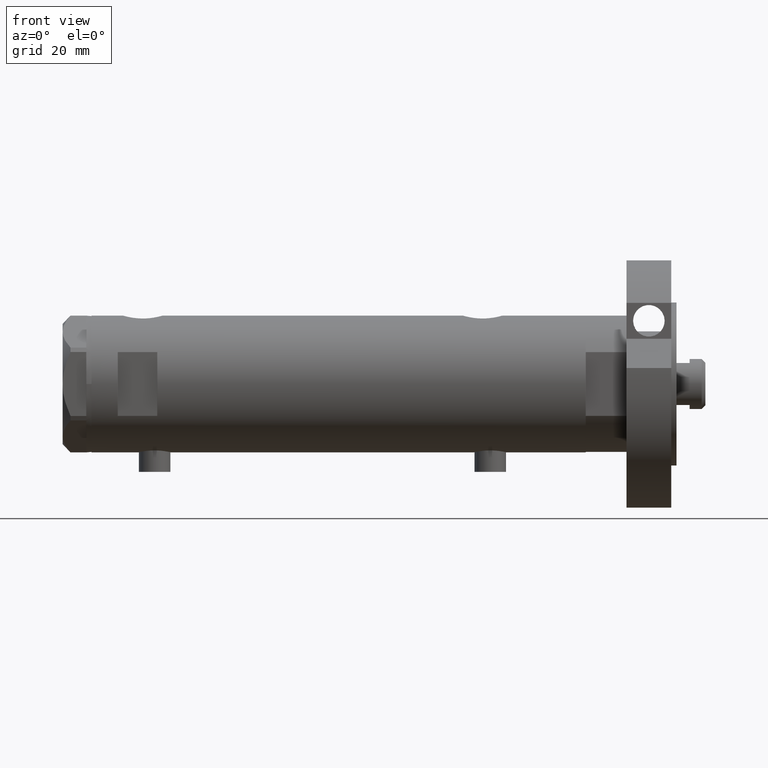
[diagram: clean part render]
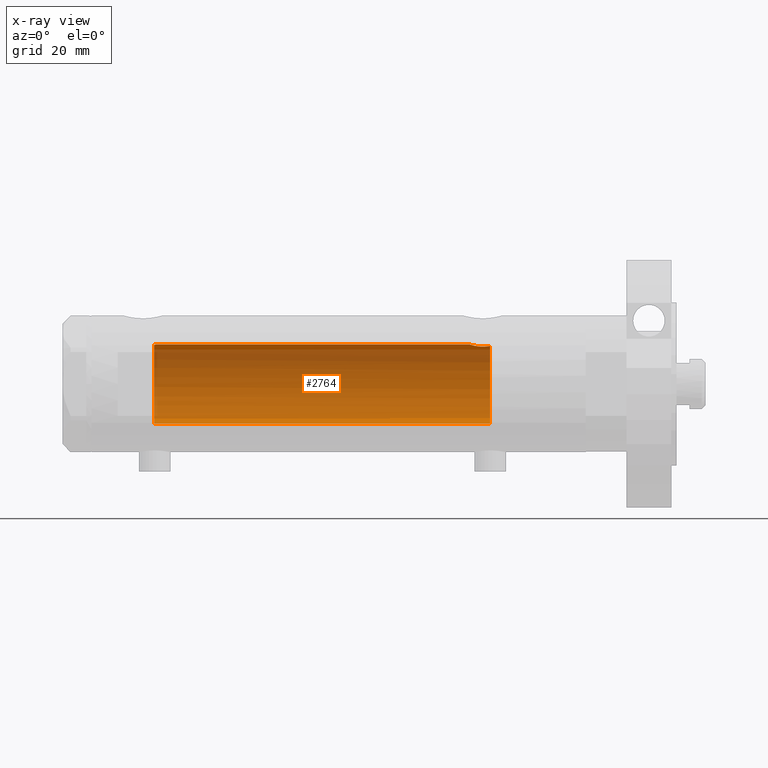
[diagram: x-ray — body ghosted, one internal face saturated and labeled with its STEP entity id]
A machine part, front view, then the same camera in x-ray: the body is ghosted and one INTERNAL B-rep face — a face not visible from any outside direction — is saturated and labeled: STEP entity #2764.
In plain terms, the highlighted cylindrical surface (partial cylindrical patch) has radius 15 mm, axis along (1, 0, -0).
Its self-contained STEP definition (entity closure, byte-faithful):
#200 = CARTESIAN_POINT ( 'NONE',  ( 14.46277203719950855, 3.978470183374505975, -57.55000000000000426 ) ) ;
#267 = DIRECTION ( 'NONE',  ( -1.000000000000000000, 0.000000000000000000, 0.000000000000000000 ) ) ;
#273 = CARTESIAN_POINT ( 'NONE',  ( 14.99999999999999822, 0.2215872191885691345, -49.88500000000000512 ) ) ;
#456 = CIRCLE ( 'NONE', #2121, 15.00000000000000000 ) ;
#575 = CARTESIAN_POINT ( 'NONE',  ( -15.00000000000000000, 0.000000000000000000, 93.95000000000001705 ) ) ;
#693 = CARTESIAN_POINT ( 'NONE',  ( 14.39420242489971535, 4.221147702577646932, -57.17871871185443666 ) ) ;
#725 = CARTESIAN_POINT ( 'NONE',  ( 14.42780822725581125, 4.105572710089619548, -57.36940228115441442 ) ) ;
#966 = CARTESIAN_POINT ( 'NONE',  ( 15.00000000000000000, 0.000000000000000000, 69.58500000000000796 ) ) ;
#1186 = CARTESIAN_POINT ( 'NONE',  ( -15.00000000000000000, 0.000000000000000000, 70.15000000000000568 ) ) ;
#1193 = CARTESIAN_POINT ( 'NONE',  ( 14.25831405531604545, 4.659025730769700502, -56.16798855846089822 ) ) ;
#1223 = CARTESIAN_POINT ( 'NONE',  ( 14.30778609824508152, 4.504821240468950272, -52.89964104205773765 ) ) ;
#1502 = CARTESIAN_POINT ( 'NONE',  ( 0.000000000000000000, 0.000000000000000000, -57.55000000000000426 ) ) ;
#1636 = EDGE_LOOP ( 'NONE', ( #3897, #1699, #4758, #3211, #3885, #2072 ) ) ;
#1677 = CARTESIAN_POINT ( 'NONE',  ( 14.23996709707015818, 4.714409263334266242, -53.52876674044652106 ) ) ;
#1678 = EDGE_CURVE ( 'NONE', #2801, #2213, #5037, .T. ) ;
#1699 = ORIENTED_EDGE ( 'NONE', *, *, #3891, .F. ) ;
#1711 = CARTESIAN_POINT ( 'NONE',  ( 0.000000000000000000, 0.000000000000000000, 93.95000000000001705 ) ) ;
#1730 = CARTESIAN_POINT ( 'NONE',  ( 15.00000000000000000, 1.836970198721029589E-15, 93.95000000000001705 ) ) ;
#1789 = DIRECTION ( 'NONE',  ( 1.000000000000000000, 0.000000000000000000, 0.000000000000000000 ) ) ;
#1819 = CARTESIAN_POINT ( 'NONE',  ( 14.33601656325283180, 4.414747171699214157, -52.69405684818109137 ) ) ;
#1998 = CARTESIAN_POINT ( 'NONE',  ( 15.00000000000000000, 0.000000000000000000, 69.58500000000000796 ) ) ;
#2005 = CIRCLE ( 'NONE', #4212, 15.00000000000000000 ) ;
#2072 = ORIENTED_EDGE ( 'NONE', *, *, #2414, .F. ) ;
#2121 = AXIS2_PLACEMENT_3D ( 'NONE', #1502, #3059, #5003 ) ;
#2168 = CARTESIAN_POINT ( 'NONE',  ( 15.00000000000000000, 5.959273468635536151E-16, -49.88499999999999801 ) ) ;
#2213 = VERTEX_POINT ( 'NONE', #2375 ) ;
#2302 = CARTESIAN_POINT ( 'NONE',  ( 14.42796195111116830, 4.108450791336244023, -52.10736184290815487 ) ) ;
#2375 = CARTESIAN_POINT ( 'NONE',  ( -15.00000000000000000, 0.000000000000000000, -57.55000000000000426 ) ) ;
#2414 = EDGE_CURVE ( 'NONE', #6122, #4710, #3629, .T. ) ;
#2692 = CARTESIAN_POINT ( 'NONE',  ( 14.92306512695867049, 1.532295990539004116, -50.12730056478243768 ) ) ;
#2693 = B_SPLINE_CURVE_WITH_KNOTS ( 'NONE', 3,
 ( #4222, #6225, #3687, #3820, #6449, #3946, #3393, #1998 ),
 .UNSPECIFIED., .F., .F.,
 ( 4, 2, 2, 4 ),
 ( 0.02826119741494477131, 0.02885214443185063829, 0.02944309144875650874, 0.03062498548256823577 ),
 .UNSPECIFIED. ) ;
#2755 = FACE_OUTER_BOUND ( 'NONE', #1636, .T. ) ;
#2764 = ADVANCED_FACE ( 'NONE', ( #2755 ), #4297, .F. ) ;
#2801 = VERTEX_POINT ( 'NONE', #1186 ) ;
#3059 = DIRECTION ( 'NONE',  ( 0.000000000000000000, 0.000000000000000000, -1.000000000000000000 ) ) ;
#3069 = CARTESIAN_POINT ( 'NONE',  ( 15.00000000000000000, 5.959273468635536151E-16, -49.88499999999999801 ) ) ;
#3182 = CARTESIAN_POINT ( 'NONE',  ( 14.33334483745703203, 4.423389780079196143, -56.78724945987952566 ) ) ;
#3211 = ORIENTED_EDGE ( 'NONE', *, *, #1678, .T. ) ;
#3227 = DIRECTION ( 'NONE',  ( -0.000000000000000000, -0.000000000000000000, -1.000000000000000000 ) ) ;
#3249 = CARTESIAN_POINT ( 'NONE',  ( 14.20808274384303971, 4.809639920165276195, -55.51496246579131366 ) ) ;
#3393 = CARTESIAN_POINT ( 'NONE',  ( 15.00000000000000178, 0.3998316629799374411, 69.58500000000002217 ) ) ;
#3629 = B_SPLINE_CURVE_WITH_KNOTS ( 'NONE', 3,
 ( #2168, #273, #5326, #5198, #4697, #2692, #5821, #6173, #4207, #4171, #4796, #3712, #2302, #1819, #1223, #3819, #1677, #5749, #4274, #3675, #3249, #5683, #1193, #5261, #3182, #693, #725, #200 ),
 .UNSPECIFIED., .F., .F.,
 ( 4, 2, 2, 2, 2, 2, 2, 2, 2, 2, 2, 2, 2, 4 ),
 ( 0.01531448496322443745, 0.01597936247866482348, 0.01664423999410521299, 0.01730911750954559902, 0.01797399502498598853, 0.01930375005586676060, 0.02063350508674753614, 0.02129838260218791524, 0.02196326011762829433, 0.02329301514850904906, 0.02395789266394942815, 0.02462277017938980378, 0.02528764769483018288, 0.02595252521027056197 ),
 .UNSPECIFIED. ) ;
#3645 = EDGE_CURVE ( 'NONE', #2213, #4710, #456, .T. ) ;
#3675 = CARTESIAN_POINT ( 'NONE',  ( 14.19789541567450364, 4.839422427565552631, -55.29531557750246407 ) ) ;
#3687 = CARTESIAN_POINT ( 'NONE',  ( 14.87714698525761214, 1.924825815456619793, 69.97761219789977361 ) ) ;
#3712 = CARTESIAN_POINT ( 'NONE',  ( 14.49939476291675078, 3.855488469592460277, -51.74998822577912705 ) ) ;
#3819 = CARTESIAN_POINT ( 'NONE',  ( 14.25987224063200465, 4.654266980155760791, -53.31645838593741615 ) ) ;
#3820 = CARTESIAN_POINT ( 'NONE',  ( 14.92022334814851448, 1.556082286439816720, 69.83634472570267349 ) ) ;
#3885 = ORIENTED_EDGE ( 'NONE', *, *, #3645, .T. ) ;
#3891 = EDGE_CURVE ( 'NONE', #4551, #5086, #2693, .T. ) ;
#3897 = ORIENTED_EDGE ( 'NONE', *, *, #5946, .F. ) ;
#3946 = CARTESIAN_POINT ( 'NONE',  ( 14.98404286071220604, 0.7911628595372720563, 69.63357750803344004 ) ) ;
#4120 = DIRECTION ( 'NONE',  ( -0.000000000000000000, -0.000000000000000000, -1.000000000000000000 ) ) ;
#4171 = CARTESIAN_POINT ( 'NONE',  ( 14.72004460873233000, 2.909758128378248987, -50.82614485536701210 ) ) ;
#4207 = CARTESIAN_POINT ( 'NONE',  ( 14.81695028448457130, 2.344053258630407033, -50.48122781573722051 ) ) ;
#4212 = AXIS2_PLACEMENT_3D ( 'NONE', #4910, #6291, #1789 ) ;
#4222 = CARTESIAN_POINT ( 'NONE',  ( 14.82638779339053947, 2.275571356824483082, 70.15000000000000568 ) ) ;
#4274 = CARTESIAN_POINT ( 'NONE',  ( 14.18274079043653124, 4.883732009304969424, -54.63167541567703722 ) ) ;
#4297 = CYLINDRICAL_SURFACE ( 'NONE', #5370, 15.00000000000000000 ) ;
#4551 = VERTEX_POINT ( 'NONE', #5901 ) ;
#4567 = EDGE_CURVE ( 'NONE', #4551, #2801, #2005, .T. ) ;
#4697 = CARTESIAN_POINT ( 'NONE',  ( 14.96070684509191295, 1.105917936056761253, -50.00719211967313527 ) ) ;
#4710 = VERTEX_POINT ( 'NONE', #5099 ) ;
#4758 = ORIENTED_EDGE ( 'NONE', *, *, #4567, .T. ) ;
#4796 = CARTESIAN_POINT ( 'NONE',  ( 14.64710079709035107, 3.249565827911971017, -51.10237283776275774 ) ) ;
#4910 = CARTESIAN_POINT ( 'NONE',  ( 0.000000000000000000, 0.000000000000000000, 70.15000000000000568 ) ) ;
#5003 = DIRECTION ( 'NONE',  ( -1.000000000000000000, 0.000000000000000000, 0.000000000000000000 ) ) ;
#5037 = LINE ( 'NONE', #575, #5553 ) ;
#5086 = VERTEX_POINT ( 'NONE', #966 ) ;
#5099 = CARTESIAN_POINT ( 'NONE',  ( 14.46277203719950855, 3.978470183374505975, -57.55000000000000426 ) ) ;
#5155 = DIRECTION ( 'NONE',  ( -0.000000000000000000, -0.000000000000000000, -1.000000000000000000 ) ) ;
#5198 = CARTESIAN_POINT ( 'NONE',  ( 14.97547159671691475, 0.8856171163179413774, -49.96107436056317397 ) ) ;
#5261 = CARTESIAN_POINT ( 'NONE',  ( 14.30582738521795072, 4.511024637967008033, -56.58517547595723585 ) ) ;
#5326 = CARTESIAN_POINT ( 'NONE',  ( 14.99509227038106296, 0.4430293709771138122, -49.90006686301530436 ) ) ;
#5370 = AXIS2_PLACEMENT_3D ( 'NONE', #1711, #5155, #267 ) ;
#5553 = VECTOR ( 'NONE', #4120, 1000.000000000000000 ) ;
#5683 = CARTESIAN_POINT ( 'NONE',  ( 14.23822651595894584, 4.719656459720482644, -55.95110225956647554 ) ) ;
#5749 = CARTESIAN_POINT ( 'NONE',  ( 14.19413554982521219, 4.851369549374611623, -54.17746179061393264 ) ) ;
#5821 = CARTESIAN_POINT ( 'NONE',  ( 14.90012193493785198, 1.740148100968098577, -50.20148967824481900 ) ) ;
#5901 = CARTESIAN_POINT ( 'NONE',  ( 14.82638779339053947, 2.275571356824483082, 70.15000000000000568 ) ) ;
#5946 = EDGE_CURVE ( 'NONE', #5086, #6122, #6233, .T. ) ;
#6122 = VERTEX_POINT ( 'NONE', #3069 ) ;
#6173 = CARTESIAN_POINT ( 'NONE',  ( 14.84719462287499958, 2.145357993387301043, -50.37798666051605778 ) ) ;
#6225 = CARTESIAN_POINT ( 'NONE',  ( 14.85285765243877876, 2.103108122960808402, 70.05873200114290000 ) ) ;
#6233 = LINE ( 'NONE', #1730, #6320 ) ;
#6291 = DIRECTION ( 'NONE',  ( 0.000000000000000000, 0.000000000000000000, 1.000000000000000000 ) ) ;
#6320 = VECTOR ( 'NONE', #3227, 1000.000000000000000 ) ;
#6449 = CARTESIAN_POINT ( 'NONE',  ( 14.93895715383719214, 1.365440931094928256, 69.77638192761232006 ) ) ;